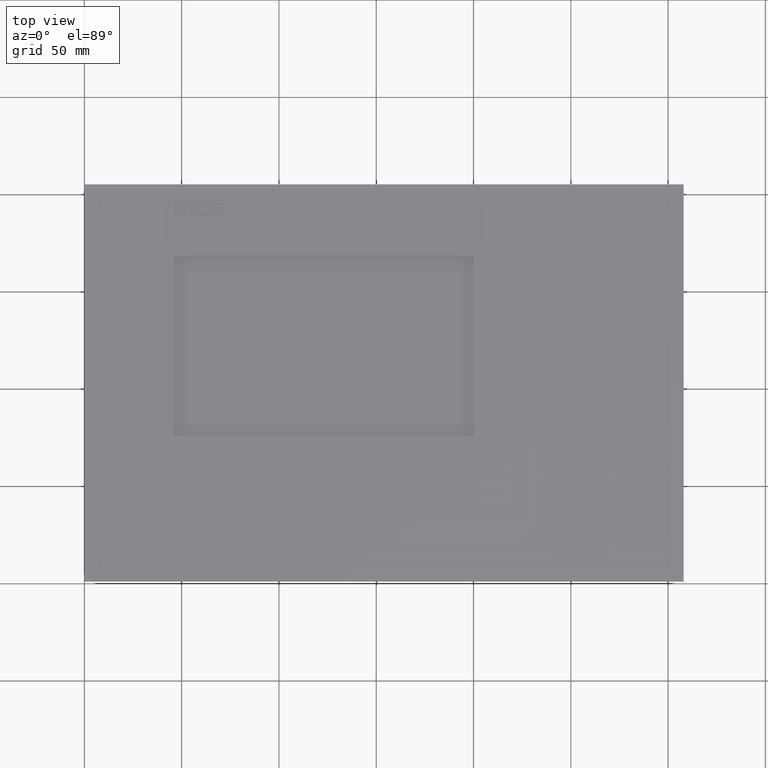
[diagram: clean part render]
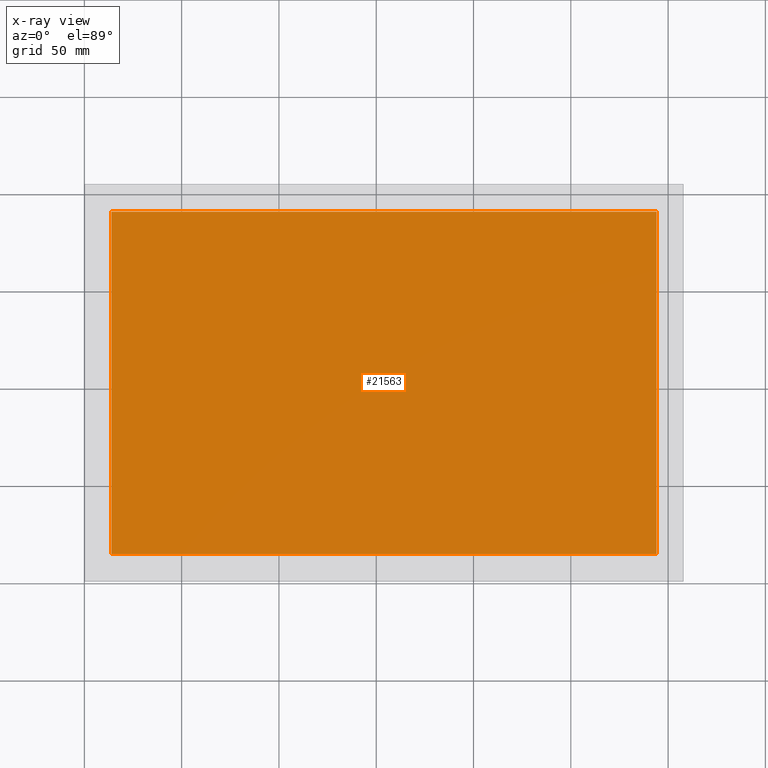
[diagram: x-ray — body ghosted, one internal face saturated and labeled with its STEP entity id]
A machine part, top view, then the same camera in x-ray: the body is ghosted and one INTERNAL B-rep face — a face not visible from any outside direction — is saturated and labeled: STEP entity #21563.
In plain terms, the highlighted planar face has unit normal (0, 0, 1).
Its self-contained STEP definition (entity closure, byte-faithful):
#4920=LINE('',#84168,#11690);
#4934=LINE('',#84194,#11704);
#4936=LINE('',#84198,#11706);
#4938=LINE('',#84202,#11708);
#11690=VECTOR('',#68181,1.);
#11704=VECTOR('',#68201,1.);
#11706=VECTOR('',#68205,1.);
#11708=VECTOR('',#68209,1.);
#18196=FACE_OUTER_BOUND('',#29652,.T.);
#21563=ADVANCED_FACE('',(#18196),#24918,.T.);
#24918=PLANE('',#63224);
#29652=EDGE_LOOP('',(#35101,#35102,#35103,#35104));
#35101=ORIENTED_EDGE('',*,*,#55539,.T.);
#35102=ORIENTED_EDGE('',*,*,#55525,.T.);
#35103=ORIENTED_EDGE('',*,*,#55541,.T.);
#35104=ORIENTED_EDGE('',*,*,#55543,.T.);
#49801=VERTEX_POINT('',#84167);
#49802=VERTEX_POINT('',#84169);
#49811=VERTEX_POINT('',#84195);
#49812=VERTEX_POINT('',#84199);
#55525=EDGE_CURVE('',#49802,#49801,#4920,.T.);
#55539=EDGE_CURVE('',#49811,#49802,#4934,.T.);
#55541=EDGE_CURVE('',#49801,#49812,#4936,.T.);
#55543=EDGE_CURVE('',#49812,#49811,#4938,.T.);
#63224=AXIS2_PLACEMENT_3D('',#84204,#68212,#68213);
#68181=DIRECTION('',(1.,0.,0.));
#68201=DIRECTION('',(0.,-1.,0.));
#68205=DIRECTION('',(0.,1.,0.));
#68209=DIRECTION('',(-1.,0.,0.));
#68212=DIRECTION('',(0.,0.,1.));
#68213=DIRECTION('',(1.,0.,0.));
#84167=CARTESIAN_POINT('',(140.0145965501,-88.01459655011,-6.));
#84168=CARTESIAN_POINT('',(-140.0145965501,-88.01459655011,-6.));
#84169=CARTESIAN_POINT('',(-140.0145965501,-88.01459655011,-6.));
#84194=CARTESIAN_POINT('',(-140.0145965501,88.01459655011,-6.));
#84195=CARTESIAN_POINT('',(-140.0145965501,88.01459655011,-6.));
#84198=CARTESIAN_POINT('',(140.0145965501,-88.01459655011,-6.));
#84199=CARTESIAN_POINT('',(140.0145965501,88.01459655011,-6.));
#84202=CARTESIAN_POINT('',(140.0145965501,88.01459655011,-6.));
#84204=CARTESIAN_POINT('',(-140.0145965501,-88.01459655011,-6.));